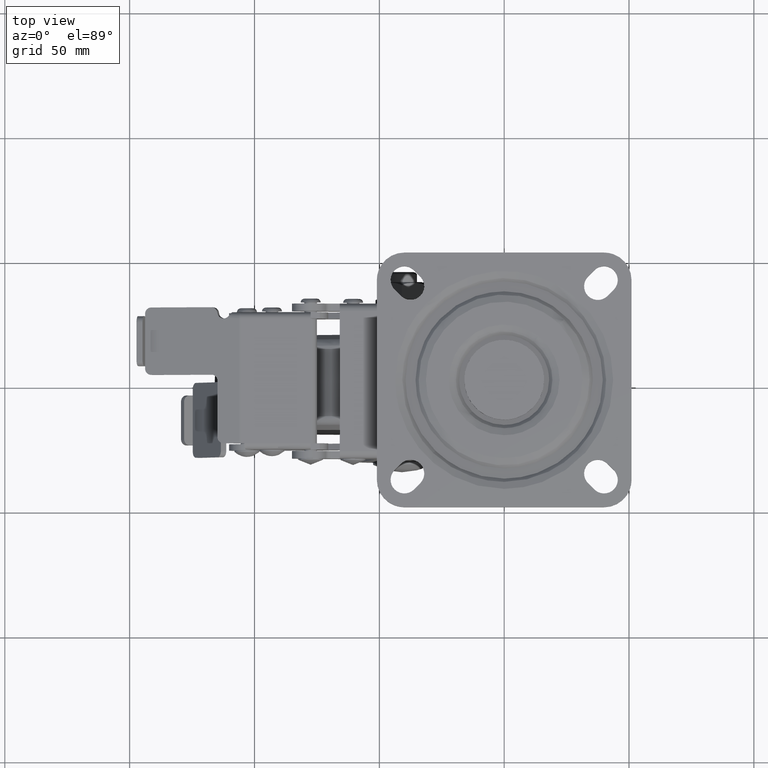
[diagram: clean part render]
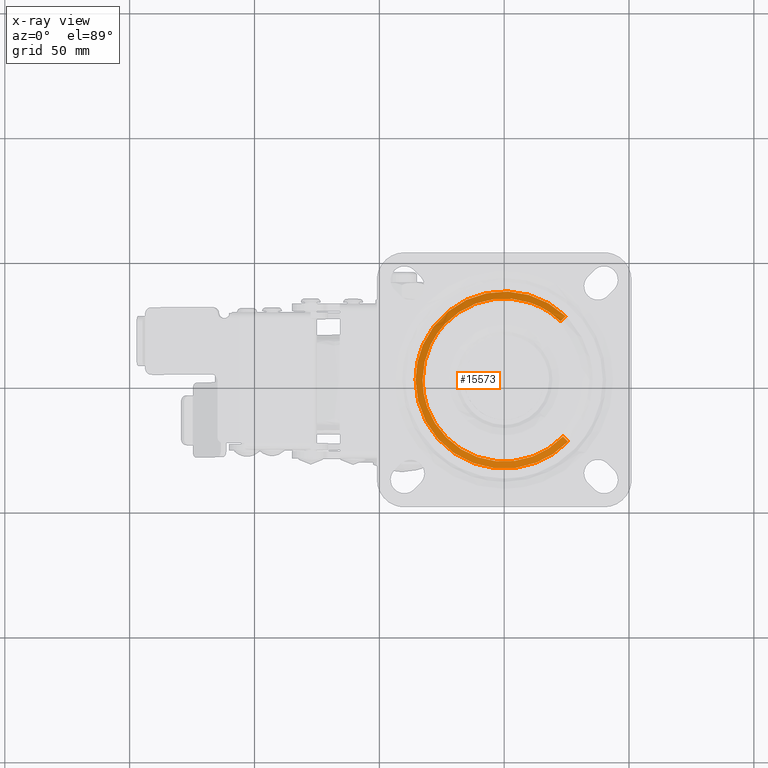
[diagram: x-ray — body ghosted, one internal face saturated and labeled with its STEP entity id]
A machine part, top view, then the same camera in x-ray: the body is ghosted and one INTERNAL B-rep face — a face not visible from any outside direction — is saturated and labeled: STEP entity #15573.
In plain terms, the highlighted face is a freeform B-spline surface patch.
Its self-contained STEP definition (entity closure, byte-faithful):
#14242=CARTESIAN_POINT('',(18.008032149346882,27.260639251421171,-5.328427126965495));
#14243=VERTEX_POINT('',#14242);
#14244=CARTESIAN_POINT('',(22.662744532903890,23.533628801262939,-5.328427127443915));
#14245=VERTEX_POINT('',#14244);
#14246=CARTESIAN_POINT('',(18.008032149346882,27.260639251421171,-5.328427126965495));
#14247=CARTESIAN_POINT('',(19.668881090612679,26.163641354389728,-5.328427127125941));
#14248=CARTESIAN_POINT('',(21.229112572319760,24.914400564169220,-5.328427127286310));
#14249=CARTESIAN_POINT('',(22.662744532903890,23.533628801262939,-5.328427127443915));
#14250=B_SPLINE_CURVE_WITH_KNOTS('',3,(#14246,#14247,#14248,#14249),.UNSPECIFIED.,.F.,.U.,(4,4),(1.579807E-009,5.971280796491333),.UNSPECIFIED.);
#14251=EDGE_CURVE('',#14243,#14245,#14250,.T.);
#14266=CARTESIAN_POINT('',(23.533628802277288,-22.662744533889811,-5.328427128858450));
#14267=VERTEX_POINT('',#14266);
#14279=CARTESIAN_POINT('',(-32.671572875253801,0.0,-5.328427124746190));
#14280=VERTEX_POINT('',#14279);
#14281=CARTESIAN_POINT('',(23.533628802277288,-22.662744533889811,-5.328427128858450));
#14282=CARTESIAN_POINT('',(21.921947406888052,-24.336894215812361,-5.328427128580003));
#14283=CARTESIAN_POINT('',(18.884359307043880,-26.881956731250838,-5.328427128097363));
#14284=CARTESIAN_POINT('',(14.303513857281031,-29.484280703040479,-5.328427127454861));
#14285=CARTESIAN_POINT('',(9.983139791298029,-31.220556655932441,-5.328427126898514));
#14286=CARTESIAN_POINT('',(5.753017189454387,-32.269013476001639,-5.328427126398784));
#14287=CARTESIAN_POINT('',(1.121879853992682,-32.751420375691389,-5.328427125897639));
#14288=CARTESIAN_POINT('',(-2.827564298083738,-32.630005415699081,-5.328427125507030));
#14289=CARTESIAN_POINT('',(-6.827157985628451,-32.019975449774307,-5.328427125145148));
#14290=CARTESIAN_POINT('',(-11.129459802217159,-30.863469231831470,-5.328427124790472));
#14291=CARTESIAN_POINT('',(-15.205409830863539,-29.041283443847249,-5.328427124504573));
#14292=CARTESIAN_POINT('',(-18.977024166111029,-26.678883076351180,-5.328427124286764));
#14293=CARTESIAN_POINT('',(-21.911416499565242,-24.349977358517979,-5.328427124151204));
#14294=CARTESIAN_POINT('',(-25.026756697901320,-21.167126748135150,-5.328427124056351));
#14295=CARTESIAN_POINT('',(-27.794237151968389,-17.415174094902479,-5.328427124035956));
#14296=CARTESIAN_POINT('',(-30.003344968954821,-13.196757728113580,-5.328427124104175));
#14297=CARTESIAN_POINT('',(-31.570936486757120,-8.810937042295208,-5.328427124248774));
#14298=CARTESIAN_POINT('',(-32.474457982357528,-4.445598988877453,-5.328427124459024));
#14299=CARTESIAN_POINT('',(-32.671619392338833,-1.414491793146828,-5.328427124648485));
#14300=CARTESIAN_POINT('',(-32.671572875253801,0.0,-5.328427124746190));
#14301=B_SPLINE_CURVE_WITH_KNOTS('',3,(#14281,#14282,#14283,#14284,#14285,#14286,#14287,#14288,#14289,#14290,#14291,#14292,#14293,#14294,#14295,#14296,#14297,#14298,#14299,#14300),.UNSPECIFIED.,.F.,.U.,(4,1,1,1,1,1,1,1,1,1,1,1,1,1,1,1,1,4),(0.000000068371563,6.971494990751978,11.821331665647790,15.761816049333561,20.914746920491378,24.855226758402569,29.705007595862291,32.736164031962822,36.979763651419177,43.041884089269402,46.072987112887709,50.316568109256487,54.257054843043463,59.409983663394797,64.259812418450238,68.503342911257164,73.353213524397177,77.596702915033319),.UNSPECIFIED.);
#14302=EDGE_CURVE('',#14267,#14280,#14301,.T.);
#14304=CARTESIAN_POINT('',(-23.699121624089681,22.489626683527511,-5.328427124360671));
#14305=VERTEX_POINT('',#14304);
#14306=CARTESIAN_POINT('',(-32.671572875253801,0.0,-5.328427124746190));
#14307=CARTESIAN_POINT('',(-32.671590699853780,1.485701346806917,-5.328427124680709));
#14308=CARTESIAN_POINT('',(-32.429017317721630,5.038512509615793,-5.328427124540519));
#14309=CARTESIAN_POINT('',(-31.209201963976600,10.217545502555289,-5.328427124394589));
#14310=CARTESIAN_POINT('',(-29.262559705078939,14.741580933448301,-5.328427124326623));
#14311=CARTESIAN_POINT('',(-26.848027560442748,18.799007569250328,-5.328427124310788));
#14312=CARTESIAN_POINT('',(-24.988741806712660,21.130907843864438,-5.328427124333480));
#14313=CARTESIAN_POINT('',(-23.699121624089681,22.489626683527511,-5.328427124360671));
#14314=B_SPLINE_CURVE_WITH_KNOTS('',3,(#14306,#14307,#14308,#14309,#14310,#14311,#14312,#14313),.UNSPECIFIED.,.F.,.U.,(4,1,1,1,1,4),(0.000000031261038,4.457126255738380,10.658360253959840,15.890623500130051,19.185035334229969,24.804889914344471),.UNSPECIFIED.);
#14315=EDGE_CURVE('',#14280,#14305,#14314,.T.);
#14408=CARTESIAN_POINT('',(-23.699121624089681,22.489626683527511,-5.328427124360671));
#14409=CARTESIAN_POINT('',(-22.269171741690570,23.996854181402242,-5.328427124390764));
#14410=CARTESIAN_POINT('',(-19.255242658164050,26.619474155817311,-5.328427124478615));
#14411=CARTESIAN_POINT('',(-14.432841342534390,29.468486426215389,-5.328427124678538));
#14412=CARTESIAN_POINT('',(-10.053563171905530,31.180980444004000,-5.328427124898695));
#14413=CARTESIAN_POINT('',(-5.727784381448037,32.261188771183889,-5.328427125143002));
#14414=CARTESIAN_POINT('',(-0.759405615220699,32.829838450398391,-5.328427125453307));
#14415=CARTESIAN_POINT('',(4.360733655224761,32.519487298155738,-5.328427125812615));
#14416=CARTESIAN_POINT('',(9.527405360123844,31.371653918125570,-5.328427126211863));
#14417=CARTESIAN_POINT('',(13.871190759707449,29.721635518216608,-5.328427126577924));
#14418=CARTESIAN_POINT('',(16.769829696440532,28.078612329109781,-5.328427126845784));
#14419=CARTESIAN_POINT('',(18.008032149346882,27.260639251421171,-5.328427126965495));
#14420=B_SPLINE_CURVE_WITH_KNOTS('',3,(#14408,#14409,#14410,#14411,#14412,#14413,#14414,#14415,#14416,#14417,#14418,#14419),.UNSPECIFIED.,.F.,.U.,(4,1,1,1,1,1,1,1,1,4),(0.000000094085316,6.232799793342096,11.931409891797250,16.739589710947669,20.301261921885001,25.287404129153600,31.698356474428302,35.616153913711130,41.136679580218022,45.588665554733609),.UNSPECIFIED.);
#14421=EDGE_CURVE('',#14305,#14243,#14420,.T.);
#15473=CARTESIAN_POINT('',(25.680735731746982,-24.730395733696962,-6.497096241566767));
#15474=CARTESIAN_POINT('',(0.950339998050026,-50.411131465443930,-6.497096241566764));
#15475=CARTESIAN_POINT('',(-24.730395733696952,-25.680735731746982,-6.497096241566767));
#15476=CARTESIAN_POINT('',(-50.411131465443930,-0.950339998050051,-6.497096241566764));
#15477=CARTESIAN_POINT('',(-25.680735731746982,24.730395733696962,-6.497096241566767));
#15478=CARTESIAN_POINT('',(-0.950339998050055,50.411131465443930,-6.497096241566764));
#15479=CARTESIAN_POINT('',(24.730395733696962,25.680735731746982,-6.497096241566767));
#15480=CARTESIAN_POINT('',(24.357580606653805,-23.456205219747940,-6.567127786180159));
#15481=CARTESIAN_POINT('',(0.901375386905866,-47.813785826401748,-6.567127786180159));
#15482=CARTESIAN_POINT('',(-23.456205219747940,-24.357580606653805,-6.567127786180159));
#15483=CARTESIAN_POINT('',(-47.813785826401748,-0.901375386905890,-6.567127786180159));
#15484=CARTESIAN_POINT('',(-24.357580606653794,23.456205219747950,-6.567127786180159));
#15485=CARTESIAN_POINT('',(-0.901375386905893,47.813785826401748,-6.567127786180159));
#15486=CARTESIAN_POINT('',(23.456205219747950,24.357580606653794,-6.567127786180159));
#15487=CARTESIAN_POINT('',(23.457589710407156,-22.589519340753061,-5.218766802629025));
#15488=CARTESIAN_POINT('',(0.868070369654092,-46.047109051160206,-5.218766802629026));
#15489=CARTESIAN_POINT('',(-22.589519340753061,-23.457589710407156,-5.218766802629025));
#15490=CARTESIAN_POINT('',(-46.047109051160206,-0.868070369654115,-5.218766802629026));
#15491=CARTESIAN_POINT('',(-23.457589710407149,22.589519340753071,-5.218766802629025));
#15492=CARTESIAN_POINT('',(-0.868070369654118,46.047109051160206,-5.218766802629026));
#15493=CARTESIAN_POINT('',(22.589519340753071,23.457589710407149,-5.218766802629025));
#15501=(BOUNDED_SURFACE()B_SPLINE_SURFACE(2,2,((#15473,#15480,#15487),(#15474,#15481,#15488),(#15475,#15482,#15489),(#15476,#15483,#15490),(#15477,#15484,#15491),(#15478,#15485,#15492),(#15479,#15486,#15493)),.UNSPECIFIED.,.F.,.F.,.U.)B_SPLINE_SURFACE_WITH_KNOTS((3,2,2,3),(3,3),(0.0,59.070808024177147,118.141616048354290,177.212424072531410),(0.0,3.500540802909877),.UNSPECIFIED.)GEOMETRIC_REPRESENTATION_ITEM()RATIONAL_B_SPLINE_SURFACE(((0.930128155954135,0.845728434338934,0.931397474376475),(0.657699926447708,0.598020310963342,0.658597470111629),(0.930128155954135,0.845728434338934,0.931397474376475),(0.657699926447708,0.598020310963342,0.658597470111629),(0.930128155954135,0.845728434338934,0.931397474376475),(0.657699926447708,0.598020310963342,0.658597470111629),(0.930128155954135,0.845728434338934,0.931397474376475)))REPRESENTATION_ITEM('')SURFACE());
#15502=ORIENTED_EDGE('',*,*,#14302,.F.);
#15503=CARTESIAN_POINT('',(25.570970381409289,-24.624692354335210,-6.500000000000000));
#15504=VERTEX_POINT('',#15503);
#15505=CARTESIAN_POINT('',(25.570970381409289,-24.624692354335210,-6.500000000000000));
#15506=CARTESIAN_POINT('',(25.217340181414151,-24.284148575499401,-6.500435015380139));
#15507=CARTESIAN_POINT('',(24.463312114193130,-23.558024032513359,-6.304637309412260));
#15508=CARTESIAN_POINT('',(23.816661523574091,-22.935303360714069,-5.722427933779742));
#15509=CARTESIAN_POINT('',(23.533628802277288,-22.662744533889811,-5.328427128858450));
#15510=B_SPLINE_CURVE_WITH_KNOTS('',3,(#15505,#15506,#15507,#15508,#15509),.UNSPECIFIED.,.F.,.U.,(4,1,4),(0.000000069979972,1.472668683379926,3.141671478723840),.UNSPECIFIED.);
#15511=EDGE_CURVE('',#15504,#14267,#15510,.T.);
#15512=ORIENTED_EDGE('',*,*,#15511,.F.);
#15513=CARTESIAN_POINT('',(-35.500000000000000,0.0,-6.500000000000000));
#15514=VERTEX_POINT('',#15513);
#15515=CARTESIAN_POINT('',(-35.500000000000000,0.0,-6.500000000000000));
#15516=CARTESIAN_POINT('',(-35.500054626765227,-1.866299427701001,-6.499999999999999));
#15517=CARTESIAN_POINT('',(-35.161865233938109,-6.147916042422345,-6.499999999999999));
#15518=CARTESIAN_POINT('',(-33.631235202449560,-11.907197539066910,-6.500000000000020));
#15519=CARTESIAN_POINT('',(-31.514099964147789,-16.505596244449979,-6.499999999999979));
#15520=CARTESIAN_POINT('',(-29.357556912224929,-20.081002153487759,-6.500000000000052));
#15521=CARTESIAN_POINT('',(-26.430479927020130,-23.936530853872281,-6.499999999999957));
#15522=CARTESIAN_POINT('',(-22.829173251535810,-27.352552085650480,-6.500000000000051));
#15523=CARTESIAN_POINT('',(-18.520973228774231,-30.397000662374818,-6.499999999999876));
#15524=CARTESIAN_POINT('',(-14.537089546152890,-32.521765638879842,-6.500000000000286));
#15525=CARTESIAN_POINT('',(-9.052207338451936,-34.500377940070742,-6.499999999999918));
#15526=CARTESIAN_POINT('',(-3.405595600547255,-35.523027784929972,-6.499999999999854));
#15527=CARTESIAN_POINT('',(2.429057723817452,-35.539695150975973,-6.500000000000425));
#15528=CARTESIAN_POINT('',(7.005354469422797,-34.890521129767592,-6.499999999999816));
#15529=CARTESIAN_POINT('',(11.571539546984241,-33.668445246303712,-6.500000000000063));
#15530=CARTESIAN_POINT('',(16.254303992154739,-31.736079595175500,-6.499999999999860));
#15531=CARTESIAN_POINT('',(21.220521470627521,-28.665392230419300,-6.500000000000421));
#15532=CARTESIAN_POINT('',(24.200345985831952,-26.048190883492701,-6.499999999999666));
#15533=CARTESIAN_POINT('',(25.570970381409289,-24.624692354335210,-6.500000000000000));
#15534=B_SPLINE_CURVE_WITH_KNOTS('',3,(#15515,#15516,#15517,#15518,#15519,#15520,#15521,#15522,#15523,#15524,#15525,#15526,#15527,#15528,#15529,#15530,#15531,#15532,#15533),.UNSPECIFIED.,.F.,.U.,(4,1,1,1,1,1,1,1,1,1,1,1,1,1,1,1,4),(0.000000025721022,5.598948324920656,12.844736893665360,17.785061966308529,20.749239960110209,25.360201566830209,32.276639026112697,35.570203561073548,41.169131111899993,45.779996789746207,53.025769976238273,58.295452461773181,63.235776399429760,66.858679743538602,72.457688646855416,78.386081865685611,84.314366005643507),.UNSPECIFIED.);
#15535=EDGE_CURVE('',#15514,#15504,#15534,.T.);
#15536=ORIENTED_EDGE('',*,*,#15535,.F.);
#15537=CARTESIAN_POINT('',(24.624692355818539,25.570970382960159,-6.500000000000000));
#15538=VERTEX_POINT('',#15537);
#15539=CARTESIAN_POINT('',(24.624692355818539,25.570970382960159,-6.500000000000000));
#15540=CARTESIAN_POINT('',(22.446237626341500,27.670099155656459,-6.499999999999973));
#15541=CARTESIAN_POINT('',(18.247671029960369,30.785825298781720,-6.500000000000023));
#15542=CARTESIAN_POINT('',(11.807360065977230,33.658710557104143,-6.500000000000000));
#15543=CARTESIAN_POINT('',(6.243352055180754,35.083385576226817,-6.500000000000019));
#15544=CARTESIAN_POINT('',(1.177282739558198,35.591811981143451,-6.499999999999953));
#15545=CARTESIAN_POINT('',(-4.448614612451155,35.384347284070131,-6.500000000000044));
#15546=CARTESIAN_POINT('',(-9.981086382928961,34.255537769140133,-6.499999999999931));
#15547=CARTESIAN_POINT('',(-15.021602621663900,32.272730605289418,-6.500000000000031));
#15548=CARTESIAN_POINT('',(-19.004196683360998,30.083789383839211,-6.500000000000080));
#15549=CARTESIAN_POINT('',(-22.349475173998869,27.689243503197439,-6.499999999999898));
#15550=CARTESIAN_POINT('',(-25.945518317263598,24.406306232210031,-6.499999999999917));
#15551=CARTESIAN_POINT('',(-28.980444292211100,20.724113802281209,-6.499999999999902));
#15552=CARTESIAN_POINT('',(-31.274118085076680,16.925326749008370,-6.499999999999985));
#15553=CARTESIAN_POINT('',(-33.266725688447011,12.724192455242710,-6.500000000000202));
#15554=CARTESIAN_POINT('',(-34.998834885385627,7.238614967445093,-6.499999999999367));
#15555=CARTESIAN_POINT('',(-35.500362094954362,2.484964323529803,-6.500000000000386));
#15556=CARTESIAN_POINT('',(-35.500000000000000,0.0,-6.500000000000000));
#15557=B_SPLINE_CURVE_WITH_KNOTS('',3,(#15539,#15540,#15541,#15542,#15543,#15544,#15545,#15546,#15547,#15548,#15549,#15550,#15551,#15552,#15553,#15554,#15555,#15556),.UNSPECIFIED.,.F.,.U.,(4,1,1,1,1,1,1,1,1,1,1,1,1,1,1,4),(0.000000030063660,9.075434429530304,15.557981495050340,21.068137710058132,26.254167677374230,30.791951939386891,37.922722253098321,43.108586867889002,46.998074723873117,51.535849540154850,55.425377441443352,61.583772742592267,65.797416322402015,68.714568374123061,75.521199529405422,82.976033365222577),.UNSPECIFIED.);
#15558=EDGE_CURVE('',#15538,#15514,#15557,.T.);
#15559=ORIENTED_EDGE('',*,*,#15558,.F.);
#15560=CARTESIAN_POINT('',(24.624692355818539,25.570970382960159,-6.500000000000000));
#15561=CARTESIAN_POINT('',(24.238713618977620,25.170159249746209,-6.500753360539830));
#15562=CARTESIAN_POINT('',(23.512816404208792,24.416367246510120,-6.277645149353750));
#15563=CARTESIAN_POINT('',(22.903332703083770,23.783462297064450,-5.675883251471304));
#15564=CARTESIAN_POINT('',(22.662744532903890,23.533628801262939,-5.328427127443915));
#15565=B_SPLINE_CURVE_WITH_KNOTS('',3,(#15560,#15561,#15562,#15563,#15564),.UNSPECIFIED.,.F.,.U.,(4,1,4),(0.000000069979894,1.668998398144421,3.141671483085520),.UNSPECIFIED.);
#15566=EDGE_CURVE('',#15538,#14245,#15565,.T.);
#15567=ORIENTED_EDGE('',*,*,#15566,.T.);
#15568=ORIENTED_EDGE('',*,*,#14251,.F.);
#15569=ORIENTED_EDGE('',*,*,#14421,.F.);
#15570=ORIENTED_EDGE('',*,*,#14315,.F.);
#15571=EDGE_LOOP('',(#15502,#15512,#15536,#15559,#15567,#15568,#15569,#15570));
#15572=FACE_OUTER_BOUND('',#15571,.T.);
#15573=ADVANCED_FACE('',(#15572),#15501,.T.);